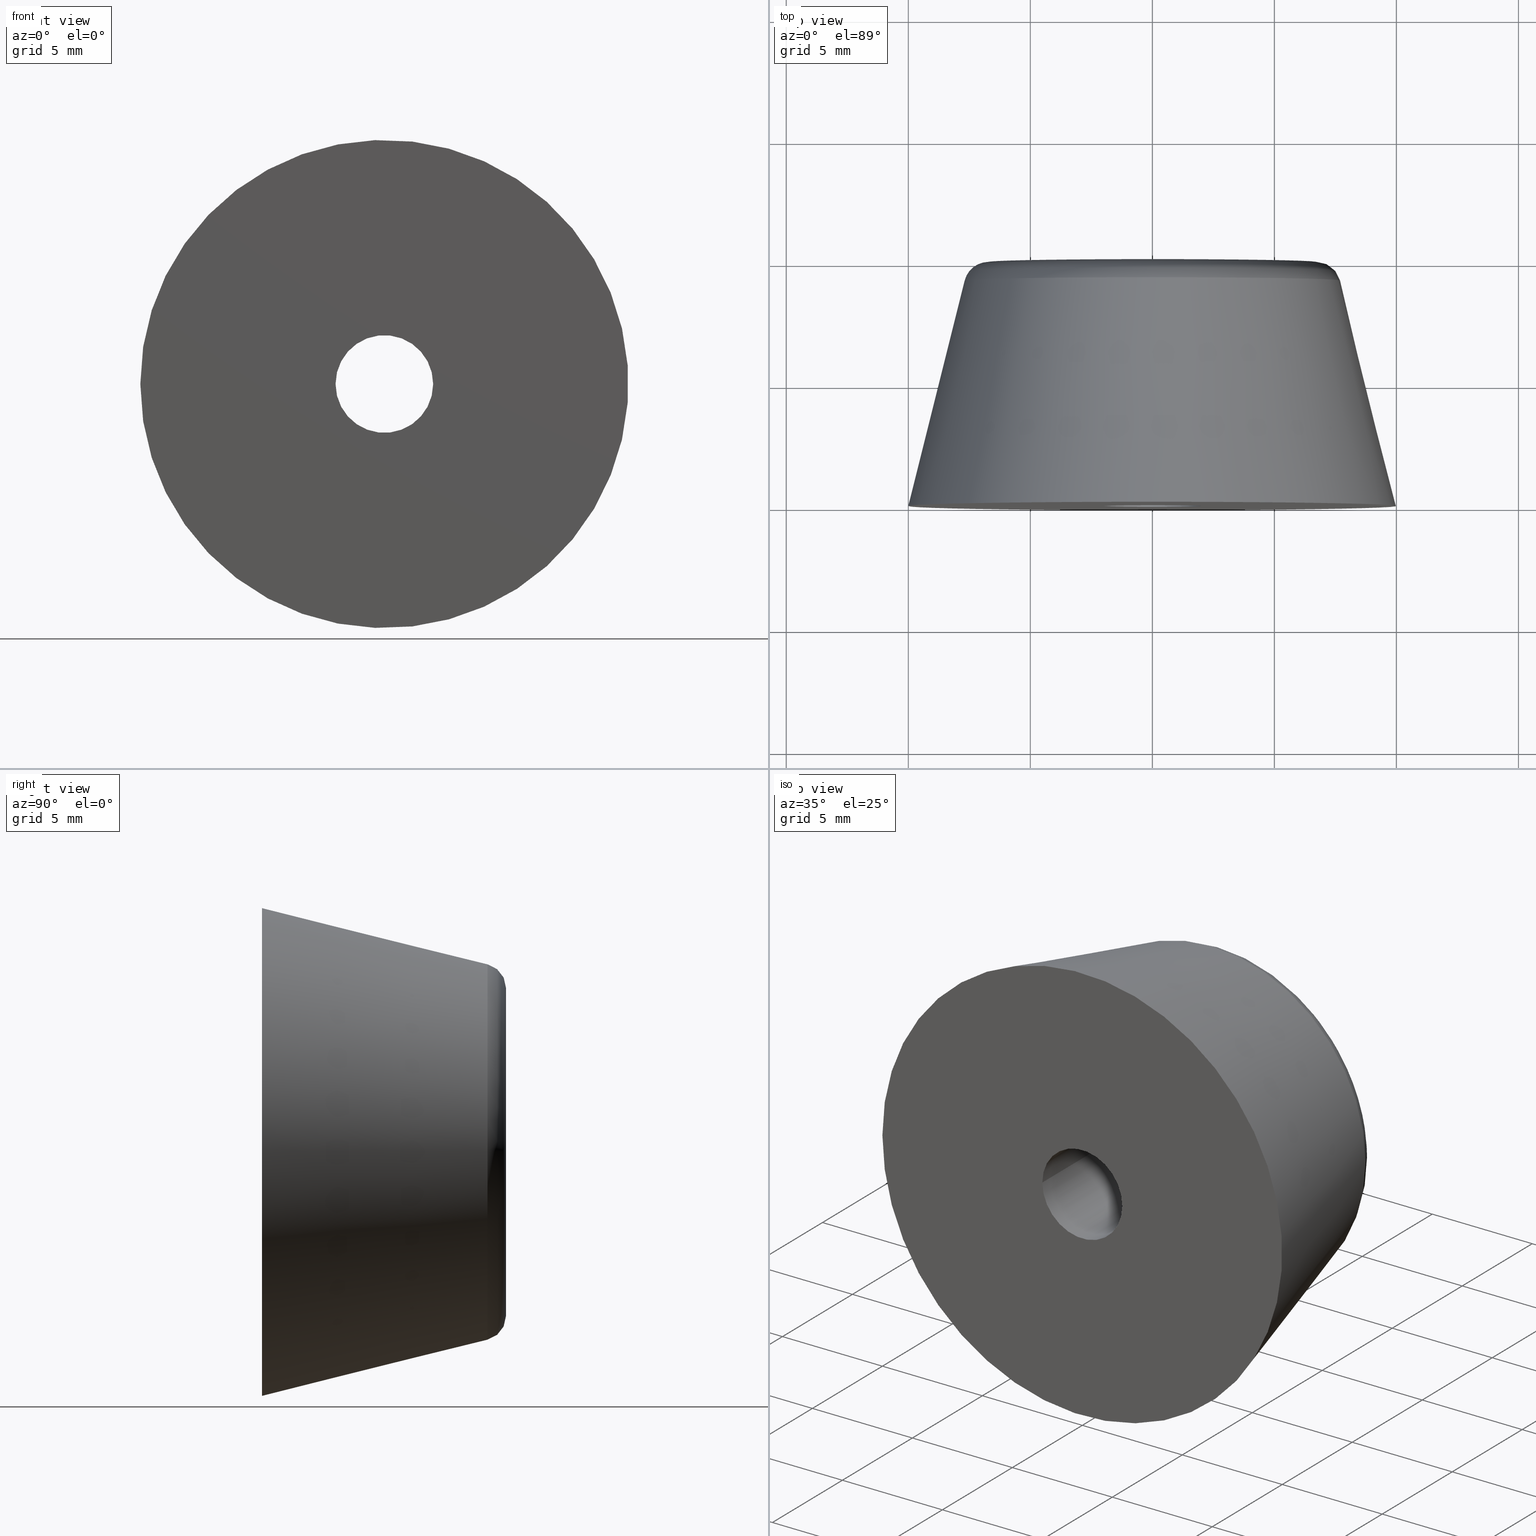
[diagram: canonical four-view strip — front | top / right | iso, engineering-drawing reading convention]
A machine part, canonical four-view strip (front | top / right | iso — engineering-drawing reading convention). The complete STEP part file that produces these views, byte-faithful:
ISO-10303-21;
HEADER;
/* Generated by software containing ST-Developer
 * from STEP Tools, Inc. (www.steptools.com) 
 */

FILE_DESCRIPTION(
/* description */ (''),
/* implementation_level */ '2;1');

FILE_NAME(
/* name */ '\\\\SYNOLOGYNAS\\web\\db2\\PR10-11\\\X2\B3C4BA74\X0\\\PR10
-11.stp',
/* time_stamp */ '2024-06-03T11:46:13+09:00',
/* author */ ('user'),
/* organization */ (''),
/* preprocessor_version */ 'ST-DEVELOPER v15.6',
/* originating_system */ 'Autodesk Inventor 2015',
/* authorisation */ '');

FILE_SCHEMA (('AUTOMOTIVE_DESIGN { 1 0 10303 214 3 1 1 }'));
ENDSEC;

DATA;
#10=MECHANICAL_DESIGN_GEOMETRIC_PRESENTATION_REPRESENTATION('',(#16),#166);
#11=DIMENSIONAL_EXPONENTS(0.,0.,0.,0.,0.,0.,0.);
#12=(
CONVERSION_BASED_UNIT('degree',#13)
NAMED_UNIT(#11)
PLANE_ANGLE_UNIT()
);
#13=PLANE_ANGLE_MEASURE_WITH_UNIT(PLANE_ANGLE_MEASURE(0.01745329252),#169);
#14=SHAPE_REPRESENTATION_RELATIONSHIP('SRR','None',#172,#15);
#15=ADVANCED_BREP_SHAPE_REPRESENTATION($,(#17),#165);
#16=STYLED_ITEM('',(#181),#17);
#17=MANIFOLD_SOLID_BREP('\X2\C194B9ACB4DC\X0\1',#95);
#18=CYLINDRICAL_SURFACE('',#107,4.);
#19=CYLINDRICAL_SURFACE('',#108,2.);
#20=CONICAL_SURFACE('',#102,10.,0.244978663126864);
#21=PLANE('',#100);
#22=PLANE('',#104);
#23=PLANE('',#110);
#24=FACE_BOUND('',#39,.T.);
#25=FACE_BOUND('',#41,.T.);
#26=FACE_BOUND('',#43,.T.);
#27=FACE_BOUND('',#45,.T.);
#28=FACE_BOUND('',#47,.T.);
#29=FACE_BOUND('',#49,.T.);
#30=FACE_BOUND('',#51,.T.);
#31=FACE_OUTER_BOUND('',#38,.T.);
#32=FACE_OUTER_BOUND('',#40,.T.);
#33=FACE_OUTER_BOUND('',#42,.T.);
#34=FACE_OUTER_BOUND('',#44,.T.);
#35=FACE_OUTER_BOUND('',#46,.T.);
#36=FACE_OUTER_BOUND('',#48,.T.);
#37=FACE_OUTER_BOUND('',#50,.T.);
#38=EDGE_LOOP('',(#73));
#39=EDGE_LOOP('',(#74));
#40=EDGE_LOOP('',(#75));
#41=EDGE_LOOP('',(#76));
#42=EDGE_LOOP('',(#77));
#43=EDGE_LOOP('',(#78));
#44=EDGE_LOOP('',(#79));
#45=EDGE_LOOP('',(#80));
#46=EDGE_LOOP('',(#81));
#47=EDGE_LOOP('',(#82));
#48=EDGE_LOOP('',(#83));
#49=EDGE_LOOP('',(#84));
#50=EDGE_LOOP('',(#85));
#51=EDGE_LOOP('',(#86));
#52=CIRCLE('',#98,6.71922359359558);
#53=CIRCLE('',#99,7.68936609374092);
#54=CIRCLE('',#101,4.);
#55=CIRCLE('',#103,10.);
#56=CIRCLE('',#105,4.);
#57=CIRCLE('',#106,2.);
#58=CIRCLE('',#109,2.);
#59=VERTEX_POINT('',#143);
#60=VERTEX_POINT('',#145);
#61=VERTEX_POINT('',#148);
#62=VERTEX_POINT('',#151);
#63=VERTEX_POINT('',#154);
#64=VERTEX_POINT('',#156);
#65=VERTEX_POINT('',#160);
#66=EDGE_CURVE('',#59,#59,#52,.T.);
#67=EDGE_CURVE('',#60,#60,#53,.T.);
#68=EDGE_CURVE('',#61,#61,#54,.T.);
#69=EDGE_CURVE('',#62,#62,#55,.T.);
#70=EDGE_CURVE('',#63,#63,#56,.T.);
#71=EDGE_CURVE('',#64,#64,#57,.T.);
#72=EDGE_CURVE('',#65,#65,#58,.T.);
#73=ORIENTED_EDGE('',*,*,#66,.T.);
#74=ORIENTED_EDGE('',*,*,#67,.T.);
#75=ORIENTED_EDGE('',*,*,#66,.F.);
#76=ORIENTED_EDGE('',*,*,#68,.T.);
#77=ORIENTED_EDGE('',*,*,#69,.T.);
#78=ORIENTED_EDGE('',*,*,#67,.F.);
#79=ORIENTED_EDGE('',*,*,#70,.T.);
#80=ORIENTED_EDGE('',*,*,#71,.F.);
#81=ORIENTED_EDGE('',*,*,#70,.F.);
#82=ORIENTED_EDGE('',*,*,#68,.F.);
#83=ORIENTED_EDGE('',*,*,#72,.F.);
#84=ORIENTED_EDGE('',*,*,#71,.T.);
#85=ORIENTED_EDGE('',*,*,#69,.F.);
#86=ORIENTED_EDGE('',*,*,#72,.T.);
#87=TOROIDAL_SURFACE('',#97,6.71922359359558,1.);
#88=ADVANCED_FACE('',(#31,#24),#87,.T.);
#89=ADVANCED_FACE('',(#32,#25),#21,.F.);
#90=ADVANCED_FACE('',(#33,#26),#20,.T.);
#91=ADVANCED_FACE('',(#34,#27),#22,.T.);
#92=ADVANCED_FACE('',(#35,#28),#18,.F.);
#93=ADVANCED_FACE('',(#36,#29),#19,.F.);
#94=ADVANCED_FACE('',(#37,#30),#23,.F.);
#95=CLOSED_SHELL('',(#88,#89,#90,#91,#92,#93,#94));
#96=AXIS2_PLACEMENT_3D('placement',#141,#111,#112);
#97=AXIS2_PLACEMENT_3D('',#142,#113,#114);
#98=AXIS2_PLACEMENT_3D('',#144,#115,#116);
#99=AXIS2_PLACEMENT_3D('',#146,#117,#118);
#100=AXIS2_PLACEMENT_3D('',#147,#119,#120);
#101=AXIS2_PLACEMENT_3D('',#149,#121,#122);
#102=AXIS2_PLACEMENT_3D('',#150,#123,#124);
#103=AXIS2_PLACEMENT_3D('',#152,#125,#126);
#104=AXIS2_PLACEMENT_3D('',#153,#127,#128);
#105=AXIS2_PLACEMENT_3D('',#155,#129,#130);
#106=AXIS2_PLACEMENT_3D('',#157,#131,#132);
#107=AXIS2_PLACEMENT_3D('',#158,#133,#134);
#108=AXIS2_PLACEMENT_3D('',#159,#135,#136);
#109=AXIS2_PLACEMENT_3D('',#161,#137,#138);
#110=AXIS2_PLACEMENT_3D('',#162,#139,#140);
#111=DIRECTION('axis',(0.,0.,1.));
#112=DIRECTION('refdir',(1.,0.,0.));
#113=DIRECTION('center_axis',(0.,-1.,0.));
#114=DIRECTION('ref_axis',(0.,0.,-1.));
#115=DIRECTION('center_axis',(0.,-1.,0.));
#116=DIRECTION('ref_axis',(-1.,0.,1.22464679914735E-16));
#117=DIRECTION('center_axis',(0.,1.,0.));
#118=DIRECTION('ref_axis',(-1.,0.,1.22464679914735E-16));
#119=DIRECTION('center_axis',(0.,-1.,0.));
#120=DIRECTION('ref_axis',(0.,0.,-1.));
#121=DIRECTION('center_axis',(0.,-1.,0.));
#122=DIRECTION('ref_axis',(1.,0.,0.));
#123=DIRECTION('center_axis',(0.,-1.,0.));
#124=DIRECTION('ref_axis',(1.,0.,0.));
#125=DIRECTION('center_axis',(0.,1.,0.));
#126=DIRECTION('ref_axis',(1.,0.,0.));
#127=DIRECTION('center_axis',(0.,1.,0.));
#128=DIRECTION('ref_axis',(1.,0.,0.));
#129=DIRECTION('center_axis',(0.,1.,0.));
#130=DIRECTION('ref_axis',(1.,0.,0.));
#131=DIRECTION('center_axis',(0.,1.,0.));
#132=DIRECTION('ref_axis',(1.,0.,0.));
#133=DIRECTION('center_axis',(0.,1.,0.));
#134=DIRECTION('ref_axis',(1.,0.,0.));
#135=DIRECTION('center_axis',(0.,1.,0.));
#136=DIRECTION('ref_axis',(1.,0.,0.));
#137=DIRECTION('center_axis',(0.,1.,0.));
#138=DIRECTION('ref_axis',(1.,0.,0.));
#139=DIRECTION('center_axis',(0.,1.,0.));
#140=DIRECTION('ref_axis',(0.,0.,1.));
#141=CARTESIAN_POINT('',(0.,0.,0.));
#142=CARTESIAN_POINT('Origin',(0.,9.,0.));
#143=CARTESIAN_POINT('',(-8.22867566665221E-16,10.,6.71922359359558));
#144=CARTESIAN_POINT('Origin',(0.,10.,0.));
#145=CARTESIAN_POINT('',(-7.68936609374092,9.24253562503633,9.416757574172E-16));
#146=CARTESIAN_POINT('Origin',(0.,9.24253562503633,0.));
#147=CARTESIAN_POINT('Origin',(0.,10.,0.));
#148=CARTESIAN_POINT('',(-4.,10.,4.89858719658941E-16));
#149=CARTESIAN_POINT('Origin',(0.,10.,0.));
#150=CARTESIAN_POINT('Origin',(0.,0.,0.));
#151=CARTESIAN_POINT('',(-10.,-8.65917475155937E-33,1.22464679914735E-15));
#152=CARTESIAN_POINT('Origin',(0.,0.,0.));
#153=CARTESIAN_POINT('Origin',(0.,5.5,0.));
#154=CARTESIAN_POINT('',(-4.,5.5,4.89858719658941E-16));
#155=CARTESIAN_POINT('Origin',(0.,5.5,0.));
#156=CARTESIAN_POINT('',(-2.,5.5,2.44929359829471E-16));
#157=CARTESIAN_POINT('Origin',(0.,5.5,0.));
#158=CARTESIAN_POINT('Origin',(0.,7.5,0.));
#159=CARTESIAN_POINT('Origin',(0.,-20.,0.));
#160=CARTESIAN_POINT('',(-2.,0.,2.44929359829471E-16));
#161=CARTESIAN_POINT('Origin',(0.,0.,0.));
#162=CARTESIAN_POINT('Origin',(0.,0.,0.));
#163=UNCERTAINTY_MEASURE_WITH_UNIT(LENGTH_MEASURE(0.01),#167,
'DISTANCE_ACCURACY_VALUE',
'Maximum model space distance between geometric entities at asserted c
onnectivities');
#164=UNCERTAINTY_MEASURE_WITH_UNIT(LENGTH_MEASURE(1.E-6),#167,
'DISTANCE_ACCURACY_VALUE',
'Maximum model space distance between geometric entities at asserted c
onnectivities');
#165=(
GEOMETRIC_REPRESENTATION_CONTEXT(3)
GLOBAL_UNCERTAINTY_ASSIGNED_CONTEXT((#163))
GLOBAL_UNIT_ASSIGNED_CONTEXT((#167,#169,#168))
REPRESENTATION_CONTEXT('','3D')
);
#166=(
GEOMETRIC_REPRESENTATION_CONTEXT(3)
GLOBAL_UNCERTAINTY_ASSIGNED_CONTEXT((#164))
GLOBAL_UNIT_ASSIGNED_CONTEXT((#167,#12,#168))
REPRESENTATION_CONTEXT('','3D')
);
#167=(
LENGTH_UNIT()
NAMED_UNIT(*)
SI_UNIT(.MILLI.,.METRE.)
);
#168=(
NAMED_UNIT(*)
SI_UNIT($,.STERADIAN.)
SOLID_ANGLE_UNIT()
);
#169=(
NAMED_UNIT(*)
PLANE_ANGLE_UNIT()
SI_UNIT($,.RADIAN.)
);
#170=SHAPE_DEFINITION_REPRESENTATION(#171,#172);
#171=PRODUCT_DEFINITION_SHAPE('',$,#174);
#172=SHAPE_REPRESENTATION('',(#96),#165);
#173=PRODUCT_DEFINITION_CONTEXT('part definition',#178,'design');
#174=PRODUCT_DEFINITION('PR10-11','PR10-11',#175,#173);
#175=PRODUCT_DEFINITION_FORMATION('',$,#180);
#176=PRODUCT_RELATED_PRODUCT_CATEGORY('PR10-11','PR10-11',(#180));
#177=APPLICATION_PROTOCOL_DEFINITION('international standard',
'automotive_design',2009,#178);
#178=APPLICATION_CONTEXT(
'Core Data for Automotive Mechanical Design Process');
#179=PRODUCT_CONTEXT('part definition',#178,'mechanical');
#180=PRODUCT('PR10-11','PR10-11',$,(#179));
#181=PRESENTATION_STYLE_ASSIGNMENT((#182));
#182=SURFACE_STYLE_USAGE(.BOTH.,#183);
#183=SURFACE_SIDE_STYLE($,(#184));
#184=SURFACE_STYLE_FILL_AREA(#185);
#185=FILL_AREA_STYLE($,(#186));
#186=FILL_AREA_STYLE_COLOUR($,#187);
#187=COLOUR_RGB('',1.,1.,1.);
ENDSEC;
END-ISO-10303-21;
